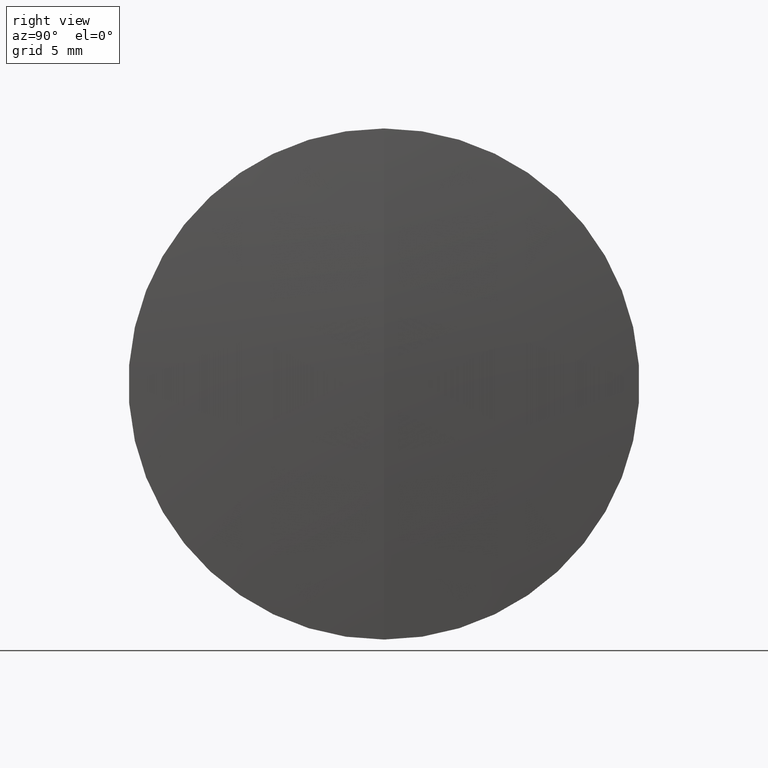
[diagram: clean part render]
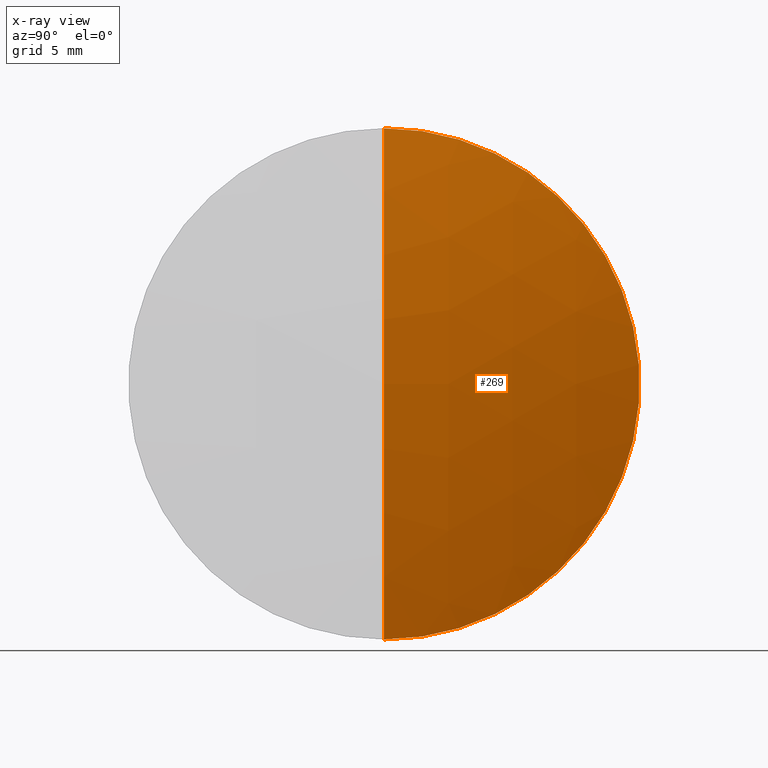
[diagram: x-ray — body ghosted, one internal face saturated and labeled with its STEP entity id]
A machine part, right view, then the same camera in x-ray: the body is ghosted and one INTERNAL B-rep face — a face not visible from any outside direction — is saturated and labeled: STEP entity #269.
In plain terms, the highlighted spherical surface has radius 75.479 mm.
Its self-contained STEP definition (entity closure, byte-faithful):
#14 = CIRCLE ( 'NONE', #213, 75.47900000000001300 ) ;
#18 = VERTEX_POINT ( 'NONE', #76 ) ;
#35 = CARTESIAN_POINT ( 'NONE',  ( 282.9165680011502700, 0.0000000000000000000, 20.00000000000000700 ) ) ;
#41 = ORIENTED_EDGE ( 'NONE', *, *, #296, .F. ) ;
#48 = AXIS2_PLACEMENT_3D ( 'NONE', #283, #91, #259 ) ;
#50 = CARTESIAN_POINT ( 'NONE',  ( 282.9165680011502700, 2.449293598294707300E-015, -20.00000000000000700 ) ) ;
#76 = CARTESIAN_POINT ( 'NONE',  ( 285.6145303539718700, 0.0000000000000000000, 1.022550920519092900E-014 ) ) ;
#78 = DIRECTION ( 'NONE',  ( -0.0000000000000000000, 1.000000000000000000, 1.224646799147353200E-016 ) ) ;
#91 = DIRECTION ( 'NONE',  ( -1.000000000000000000, -0.0000000000000000000, -0.0000000000000000000 ) ) ;
#100 = EDGE_LOOP ( 'NONE', ( #41, #341, #311 ) ) ;
#118 = CARTESIAN_POINT ( 'NONE',  ( 210.1355303539718600, 0.0000000000000000000, 5.603753417548774600E-015 ) ) ;
#127 = EDGE_CURVE ( 'NONE', #140, #336, #239, .T. ) ;
#138 = DIRECTION ( 'NONE',  ( 0.0000000000000000000, 0.0000000000000000000, -1.000000000000000000 ) ) ;
#140 = VERTEX_POINT ( 'NONE', #35 ) ;
#145 = AXIS2_PLACEMENT_3D ( 'NONE', #118, #280, #253 ) ;
#158 = AXIS2_PLACEMENT_3D ( 'NONE', #162, #323, #138 ) ;
#162 = CARTESIAN_POINT ( 'NONE',  ( 210.1355303539718600, 0.0000000000000000000, 5.603753417548774600E-015 ) ) ;
#206 = FACE_OUTER_BOUND ( 'NONE', #100, .T. ) ;
#213 = AXIS2_PLACEMENT_3D ( 'NONE', #273, #78, #247 ) ;
#239 = CIRCLE ( 'NONE', #48, 20.00000000000000700 ) ;
#247 = DIRECTION ( 'NONE',  ( 0.0000000000000000000, -1.224646799147353500E-016, 1.000000000000000000 ) ) ;
#252 = SPHERICAL_SURFACE ( 'NONE', #145, 75.47900000000001300 ) ;
#253 = DIRECTION ( 'NONE',  ( 0.0000000000000000000, 0.0000000000000000000, 1.000000000000000000 ) ) ;
#259 = DIRECTION ( 'NONE',  ( 0.0000000000000000000, 0.0000000000000000000, 1.000000000000000000 ) ) ;
#269 = ADVANCED_FACE ( 'NONE', ( #206 ), #252, .T. ) ;
#273 = CARTESIAN_POINT ( 'NONE',  ( 210.1355303539718600, 0.0000000000000000000, 5.603753417548774600E-015 ) ) ;
#280 = DIRECTION ( 'NONE',  ( 0.0000000000000000000, 1.000000000000000000, 0.0000000000000000000 ) ) ;
#283 = CARTESIAN_POINT ( 'NONE',  ( 282.9165680011502700, 0.0000000000000000000, 0.0000000000000000000 ) ) ;
#296 = EDGE_CURVE ( 'NONE', #18, #140, #347, .T. ) ;
#311 = ORIENTED_EDGE ( 'NONE', *, *, #127, .F. ) ;
#323 = DIRECTION ( 'NONE',  ( 0.0000000000000000000, -1.000000000000000000, 0.0000000000000000000 ) ) ;
#328 = EDGE_CURVE ( 'NONE', #18, #336, #14, .T. ) ;
#336 = VERTEX_POINT ( 'NONE', #50 ) ;
#341 = ORIENTED_EDGE ( 'NONE', *, *, #328, .T. ) ;
#347 = CIRCLE ( 'NONE', #158, 75.47900000000001300 ) ;